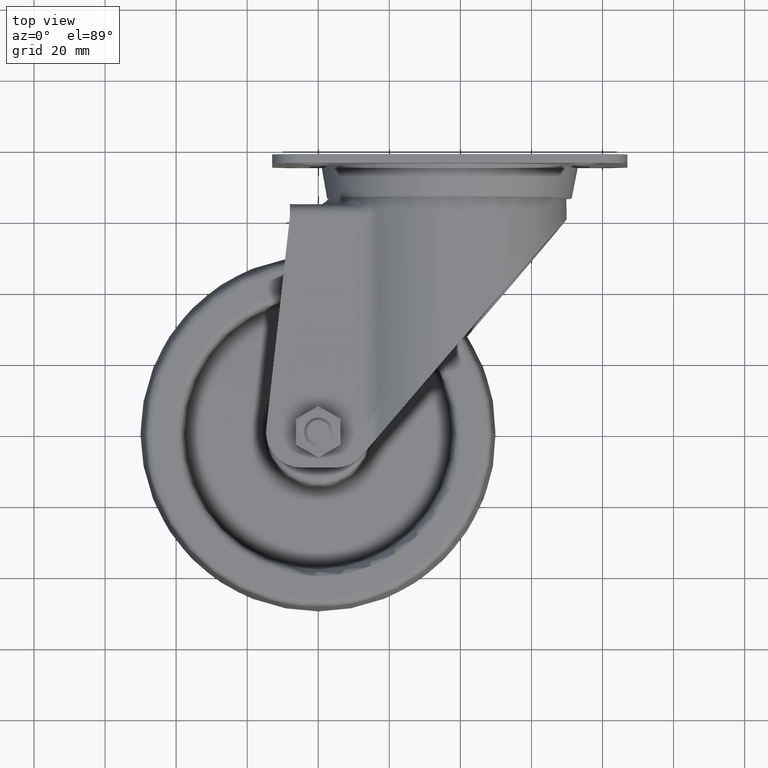
[diagram: clean part render]
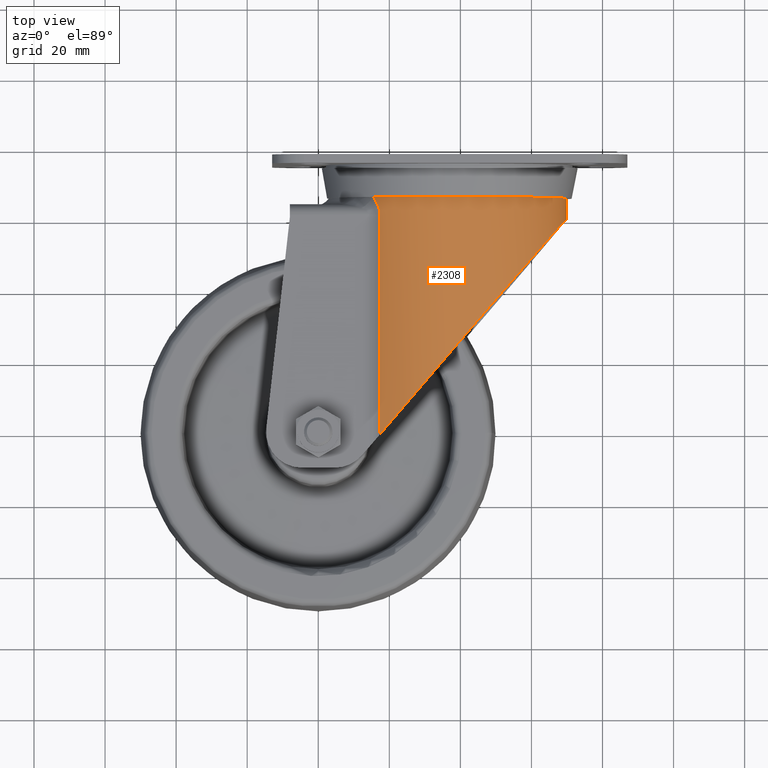
[diagram: same view with one face highlighted and labeled with its STEP entity id]
A machine part, top view. The second image highlights one B-rep face of the part: STEP entity #2308.
In plain terms, the highlighted cylindrical surface (partial cylindrical patch) has radius 33 mm, axis along (0, -1, 0).
Its self-contained STEP definition (entity closure, byte-faithful):
#83=B_SPLINE_CURVE_WITH_KNOTS('',3,(#3612,#3613,#3614,#3615,#3616),
 .UNSPECIFIED.,.F.,.F.,(4,1,4),(0.916901928336765,1.25385577368741,1.5065711577004),
 .UNSPECIFIED.);
#88=B_SPLINE_CURVE_WITH_KNOTS('',3,(#3711,#3712,#3713,#3714,#3715),
 .UNSPECIFIED.,.F.,.F.,(4,1,4),(0.,0.252715384012868,0.589669229363359),
 .UNSPECIFIED.);
#99=ELLIPSE('',#2492,50.5698303291217,33.);
#105=CYLINDRICAL_SURFACE('',#2491,33.);
#178=FACE_OUTER_BOUND('',#322,.T.);
#322=EDGE_LOOP('',(#1516,#1517,#1518,#1519,#1520,#1521));
#492=CIRCLE('',#2490,33.);
#663=LINE('',#3582,#797);
#664=LINE('',#3719,#798);
#797=VECTOR('',#2825,10.);
#798=VECTOR('',#2840,10.);
#941=VERTEX_POINT('',#3579);
#942=VERTEX_POINT('',#3581);
#944=VERTEX_POINT('',#3610);
#947=VERTEX_POINT('',#3701);
#949=VERTEX_POINT('',#3709);
#950=VERTEX_POINT('',#3717);
#1154=EDGE_CURVE('',#941,#942,#663,.T.);
#1157=EDGE_CURVE('',#944,#941,#83,.T.);
#1165=EDGE_CURVE('',#949,#947,#88,.T.);
#1167=EDGE_CURVE('',#950,#949,#664,.T.);
#1174=EDGE_CURVE('',#947,#944,#492,.T.);
#1175=EDGE_CURVE('',#950,#942,#99,.T.);
#1516=ORIENTED_EDGE('',*,*,#1154,.F.);
#1517=ORIENTED_EDGE('',*,*,#1157,.F.);
#1518=ORIENTED_EDGE('',*,*,#1174,.F.);
#1519=ORIENTED_EDGE('',*,*,#1165,.F.);
#1520=ORIENTED_EDGE('',*,*,#1167,.F.);
#1521=ORIENTED_EDGE('',*,*,#1175,.T.);
#2308=ADVANCED_FACE('',(#178),#105,.T.);
#2490=AXIS2_PLACEMENT_3D('',#3834,#2853,#2854);
#2491=AXIS2_PLACEMENT_3D('',#3835,#2855,#2856);
#2492=AXIS2_PLACEMENT_3D('',#3836,#2857,#2858);
#2825=DIRECTION('',(0.,-1.,0.));
#2840=DIRECTION('',(0.,1.,0.));
#2853=DIRECTION('center_axis',(0.,1.,0.));
#2854=DIRECTION('ref_axis',(1.,0.,0.));
#2855=DIRECTION('center_axis',(0.,-1.,0.));
#2856=DIRECTION('ref_axis',(1.,0.,0.));
#2857=DIRECTION('center_axis',(-0.757734475862358,0.652562996261355,-1.51267272270184E-32));
#2858=DIRECTION('ref_axis',(0.652562996261355,0.757734475862358,-1.59826558298198E-16));
#3579=CARTESIAN_POINT('',(17.3163216016198,61.2,-26.4868421052632));
#3581=CARTESIAN_POINT('',(17.3163216016198,-0.674537426129769,-26.4868421052632));
#3582=CARTESIAN_POINT('',(17.3163216016198,28.5,-26.4868421052632));
#3610=CARTESIAN_POINT('',(15.4161972232654,66.199999999999,-24.9627614196632));
#3612=CARTESIAN_POINT('Ctrl Pts',(15.416197223265,66.1999999999985,-24.9627614196628));
#3613=CARTESIAN_POINT('Ctrl Pts',(15.9919141142213,65.484060596949,-25.4605492893914));
#3614=CARTESIAN_POINT('Ctrl Pts',(16.9198274027358,63.9990438794714,-26.1968442355593));
#3615=CARTESIAN_POINT('Ctrl Pts',(17.3163216016198,62.0423846133766,-26.4868421052632));
#3616=CARTESIAN_POINT('Ctrl Pts',(17.3163216016198,61.2,-26.4868421052632));
#3701=CARTESIAN_POINT('',(15.4161972232673,66.1999999999978,24.9627614196648));
#3709=CARTESIAN_POINT('',(17.3163216016198,61.2,26.4868421052632));
#3711=CARTESIAN_POINT('Ctrl Pts',(17.3163216016198,61.2,26.4868421052632));
#3712=CARTESIAN_POINT('Ctrl Pts',(17.3163216016198,62.0423846133762,26.4868421052632));
#3713=CARTESIAN_POINT('Ctrl Pts',(16.9198274027362,63.9990438794701,26.1968442355596));
#3714=CARTESIAN_POINT('Ctrl Pts',(15.9919141142224,65.4840605969474,25.4605492893922));
#3715=CARTESIAN_POINT('Ctrl Pts',(15.4161972232665,66.1999999999967,24.9627614196641));
#3717=CARTESIAN_POINT('',(17.3163216016198,-0.674537426129769,26.4868421052632));
#3719=CARTESIAN_POINT('',(17.3163216016198,28.5,26.4868421052632));
#3834=CARTESIAN_POINT('Origin',(37.,66.2,0.));
#3835=CARTESIAN_POINT('Origin',(37.,28.5,0.));
#3836=CARTESIAN_POINT('Origin',(37.,22.1814961211146,0.));